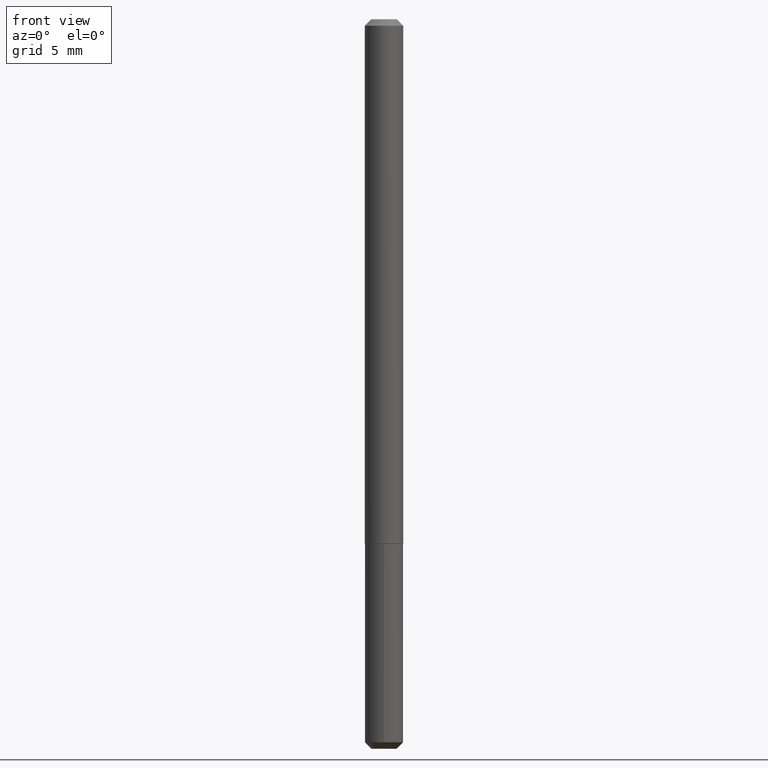
[diagram: clean part render]
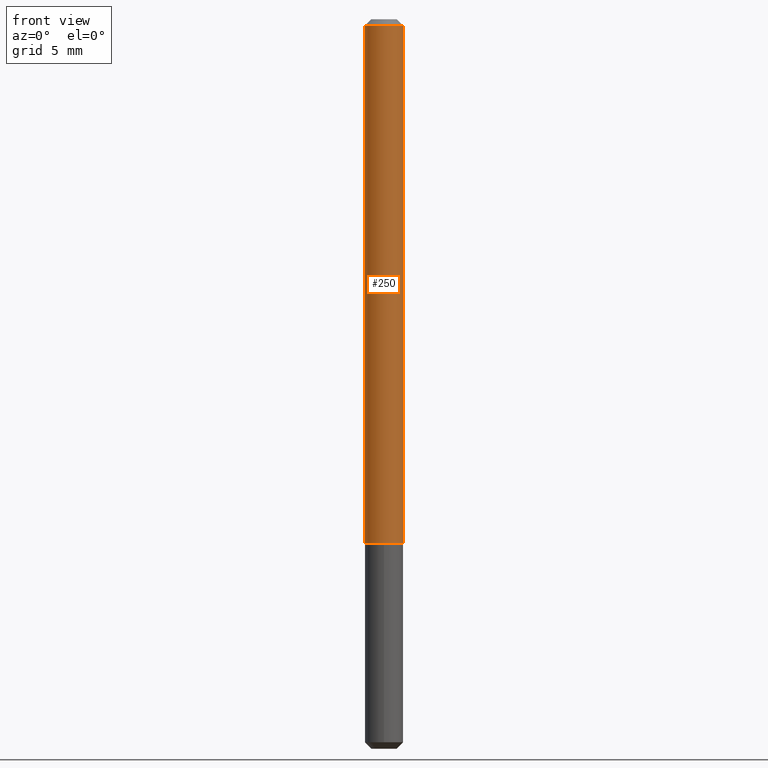
[diagram: same view with one face highlighted and labeled with its STEP entity id]
A machine part, front view. The second image highlights one B-rep face of the part: STEP entity #250.
In plain terms, the highlighted cylindrical surface (edge-blend (fillet) strip) has radius 1.4999 mm, axis along (-0, 0, 1).
Its self-contained STEP definition (entity closure, byte-faithful):
#6 = CARTESIAN_POINT ( 'NONE',  ( 0.05905000000000018567, -6.046547382608559574E-15, -1.613700000000000134 ) ) ;
#22 = FACE_OUTER_BOUND ( 'NONE', #75, .T. ) ;
#25 = CARTESIAN_POINT ( 'NONE',  ( 0.000000000000000000, 0.000000000000000000, 0.000000000000000000 ) ) ;
#33 = DIRECTION ( 'NONE',  ( -2.445468806185136877E-29, 3.491481338843145188E-15, 1.000000000000000000 ) ) ;
#34 = VERTEX_POINT ( 'NONE', #409 ) ;
#39 = EDGE_CURVE ( 'NONE', #315, #289, #283, .T. ) ;
#40 = DIRECTION ( 'NONE',  ( 1.000000000000000000, -6.982962677686266711E-15, 0.000000000000000000 ) ) ;
#41 = DIRECTION ( 'NONE',  ( 1.000000000000000000, -6.982962677686266711E-15, 0.000000000000000000 ) ) ;
#42 = VECTOR ( 'NONE', #33, 39.37007874015748143 ) ;
#54 = ORIENTED_EDGE ( 'NONE', *, *, #39, .T. ) ;
#56 = AXIS2_PLACEMENT_3D ( 'NONE', #129, #319, #41 ) ;
#68 = CARTESIAN_POINT ( 'NONE',  ( 3.946253012540955150E-29, -5.634203436491184654E-15, -1.613700000000000134 ) ) ;
#75 = EDGE_LOOP ( 'NONE', ( #306, #239, #54, #396 ) ) ;
#79 = VERTEX_POINT ( 'NONE', #261 ) ;
#99 = AXIS2_PLACEMENT_3D ( 'NONE', #25, #264, #405 ) ;
#125 = DIRECTION ( 'NONE',  ( -2.445468806185136877E-29, 3.491481338843145188E-15, 1.000000000000000000 ) ) ;
#129 = CARTESIAN_POINT ( 'NONE',  ( 4.890937612370306439E-31, -6.982962677686338448E-17, -0.02000000000000013572 ) ) ;
#140 = CYLINDRICAL_SURFACE ( 'NONE', #99, 0.05905000000000009547 ) ;
#186 = CIRCLE ( 'NONE', #56, 0.05904999999999999832 ) ;
#200 = VECTOR ( 'NONE', #125, 39.37007874015748143 ) ;
#239 = ORIENTED_EDGE ( 'NONE', *, *, #366, .T. ) ;
#250 = ADVANCED_FACE ( 'NONE', ( #22 ), #140, .T. ) ;
#254 = CARTESIAN_POINT ( 'NONE',  ( 0.05905000000000009547, -4.123439461173747229E-16, 2.879382386107504424E-30 ) ) ;
#261 = CARTESIAN_POINT ( 'NONE',  ( -0.05905000000000018567, -5.214627951024844373E-15, -1.613700000000000134 ) ) ;
#264 = DIRECTION ( 'NONE',  ( -2.445468806185136597E-29, 3.491481338843145583E-15, 1.000000000000000000 ) ) ;
#283 = LINE ( 'NONE', #254, #200 ) ;
#289 = VERTEX_POINT ( 'NONE', #323 ) ;
#306 = ORIENTED_EDGE ( 'NONE', *, *, #395, .F. ) ;
#310 = LINE ( 'NONE', #314, #42 ) ;
#314 = CARTESIAN_POINT ( 'NONE',  ( -0.05905000000000009547, 4.195754854663398381E-16, -2.904631170795526446E-30 ) ) ;
#315 = VERTEX_POINT ( 'NONE', #6 ) ;
#319 = DIRECTION ( 'NONE',  ( -2.445468806185136597E-29, 3.491481338843145583E-15, 1.000000000000000000 ) ) ;
#323 = CARTESIAN_POINT ( 'NONE',  ( 0.05904999999999999832, -4.821735728942374295E-16, -0.02000000000000013572 ) ) ;
#344 = EDGE_CURVE ( 'NONE', #34, #289, #186, .T. ) ;
#366 = EDGE_CURVE ( 'NONE', #79, #315, #404, .T. ) ;
#389 = DIRECTION ( 'NONE',  ( -2.445468806185136597E-29, 3.491481338843145583E-15, 1.000000000000000000 ) ) ;
#395 = EDGE_CURVE ( 'NONE', #79, #34, #310, .T. ) ;
#396 = ORIENTED_EDGE ( 'NONE', *, *, #344, .F. ) ;
#404 = CIRCLE ( 'NONE', #407, 0.05905000000000018567 ) ;
#405 = DIRECTION ( 'NONE',  ( 1.000000000000000000, -6.982962677686266711E-15, 4.876176775795935232E-29 ) ) ;
#407 = AXIS2_PLACEMENT_3D ( 'NONE', #68, #389, #40 ) ;
#409 = CARTESIAN_POINT ( 'NONE',  ( -0.05904999999999999832, -2.432441046167682117E-15, -0.02000000000000013572 ) ) ;